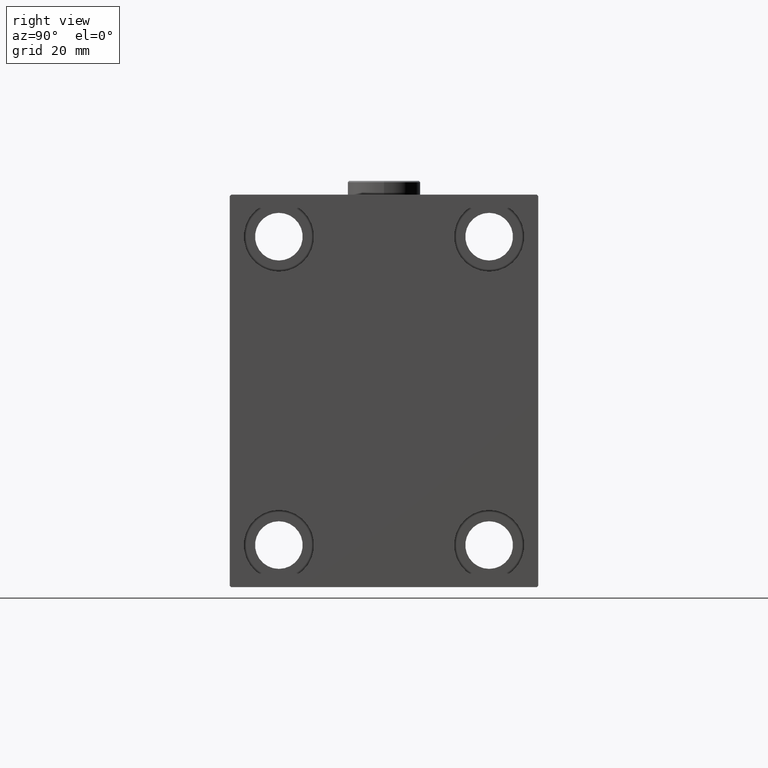
[diagram: clean part render]
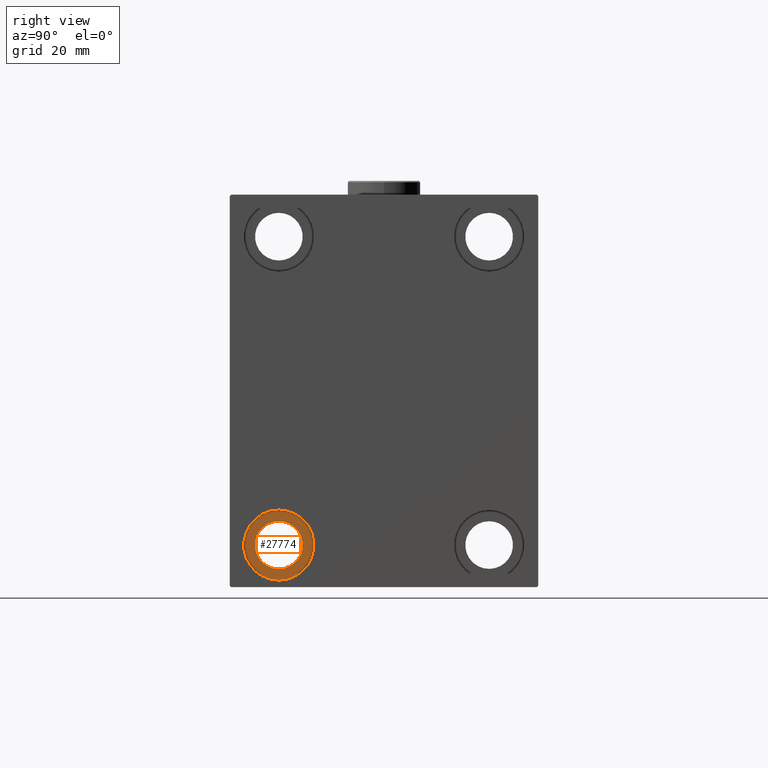
[diagram: same view with one face highlighted and labeled with its STEP entity id]
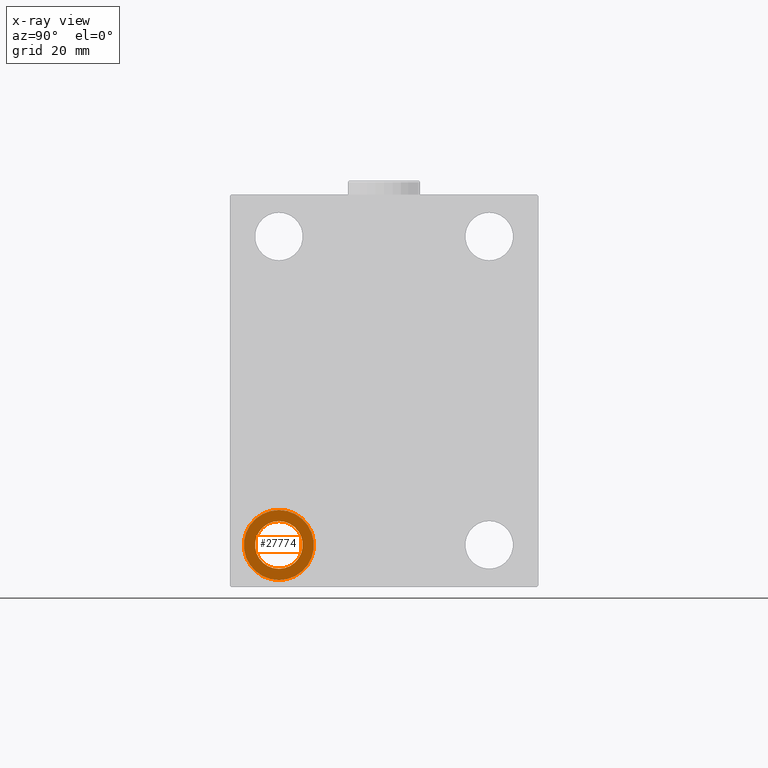
[diagram: x-ray of the same camera — body ghosted, the highlighted face saturated]
A machine part, right view. The second image highlights one B-rep face of the part: STEP entity #27774.
The next image is the same camera in x-ray: the body ghosted, the highlighted face saturated — about 0% of this face is hidden behind the body in this view.
In plain terms, the highlighted planar face has unit normal (1, 0, 0).
Its self-contained STEP definition (entity closure, byte-faithful):
#471 = EDGE_CURVE ( 'NONE', #42602, #11844, #45131, .T. ) ;
#1249 = DIRECTION ( 'NONE',  ( -1.000000000000000000, -0.000000000000000000, -0.000000000000000000 ) ) ;
#1486 = EDGE_CURVE ( 'NONE', #42203, #21560, #26860, .T. ) ;
#1609 = FACE_BOUND ( 'NONE', #31576, .T. ) ;
#3685 = CIRCLE ( 'NONE', #16116, 12.49999999999999645 ) ;
#5042 = PLANE ( 'NONE',  #44982 ) ;
#5498 = CARTESIAN_POINT ( 'NONE',  ( 155.9999999999999716, 0.000000000000000000, 0.000000000000000000 ) ) ;
#7796 = AXIS2_PLACEMENT_3D ( 'NONE', #17287, #42239, #20944 ) ;
#9850 = DIRECTION ( 'NONE',  ( -1.000000000000000000, -0.000000000000000000, -0.000000000000000000 ) ) ;
#11410 = EDGE_CURVE ( 'NONE', #11844, #42602, #3685, .T. ) ;
#11844 = VERTEX_POINT ( 'NONE', #33729 ) ;
#13524 = CIRCLE ( 'NONE', #29663, 8.499999999999992895 ) ;
#14984 = ORIENTED_EDGE ( 'NONE', *, *, #1486, .T. ) ;
#15818 = DIRECTION ( 'NONE',  ( 0.000000000000000000, 0.000000000000000000, 1.000000000000000000 ) ) ;
#16116 = AXIS2_PLACEMENT_3D ( 'NONE', #36086, #1249, #22557 ) ;
#16792 = CARTESIAN_POINT ( 'NONE',  ( 155.9999999999999716, -37.50000000000002132, -54.99999999999999289 ) ) ;
#17287 = CARTESIAN_POINT ( 'NONE',  ( 155.9999999999999716, -37.50000000000002132, -54.99999999999999289 ) ) ;
#19735 = DIRECTION ( 'NONE',  ( 0.000000000000000000, 0.000000000000000000, -1.000000000000000000 ) ) ;
#20420 = ORIENTED_EDGE ( 'NONE', *, *, #471, .F. ) ;
#20944 = DIRECTION ( 'NONE',  ( 0.000000000000000000, 0.000000000000000000, 1.000000000000000000 ) ) ;
#21198 = ORIENTED_EDGE ( 'NONE', *, *, #11410, .F. ) ;
#21329 = CARTESIAN_POINT ( 'NONE',  ( 155.9999999999999716, -37.50000000000002132, -46.50000000000000000 ) ) ;
#21523 = ORIENTED_EDGE ( 'NONE', *, *, #37256, .T. ) ;
#21560 = VERTEX_POINT ( 'NONE', #27166 ) ;
#22557 = DIRECTION ( 'NONE',  ( 0.000000000000000000, 0.000000000000000000, 1.000000000000000000 ) ) ;
#22914 = FACE_OUTER_BOUND ( 'NONE', #36589, .T. ) ;
#26475 = CARTESIAN_POINT ( 'NONE',  ( 155.9999999999999716, -37.50000000000002132, -67.49999999999998579 ) ) ;
#26860 = CIRCLE ( 'NONE', #31947, 8.499999999999992895 ) ;
#27166 = CARTESIAN_POINT ( 'NONE',  ( 155.9999999999999716, -37.50000000000002132, -63.49999999999998579 ) ) ;
#27774 = ADVANCED_FACE ( 'NONE', ( #22914, #1609 ), #5042, .T. ) ;
#27781 = DIRECTION ( 'NONE',  ( 0.000000000000000000, 0.000000000000000000, -1.000000000000000000 ) ) ;
#28905 = DIRECTION ( 'NONE',  ( 1.000000000000000000, 0.000000000000000000, -0.000000000000000000 ) ) ;
#29663 = AXIS2_PLACEMENT_3D ( 'NONE', #37594, #9850, #19735 ) ;
#31576 = EDGE_LOOP ( 'NONE', ( #14984, #21523 ) ) ;
#31947 = AXIS2_PLACEMENT_3D ( 'NONE', #16792, #44963, #27781 ) ;
#33729 = CARTESIAN_POINT ( 'NONE',  ( 155.9999999999999716, -37.50000000000002132, -42.49999999999999289 ) ) ;
#36086 = CARTESIAN_POINT ( 'NONE',  ( 155.9999999999999716, -37.50000000000002132, -54.99999999999999289 ) ) ;
#36589 = EDGE_LOOP ( 'NONE', ( #20420, #21198 ) ) ;
#37256 = EDGE_CURVE ( 'NONE', #21560, #42203, #13524, .T. ) ;
#37594 = CARTESIAN_POINT ( 'NONE',  ( 155.9999999999999716, -37.50000000000002132, -54.99999999999999289 ) ) ;
#42203 = VERTEX_POINT ( 'NONE', #21329 ) ;
#42239 = DIRECTION ( 'NONE',  ( -1.000000000000000000, -0.000000000000000000, -0.000000000000000000 ) ) ;
#42602 = VERTEX_POINT ( 'NONE', #26475 ) ;
#44963 = DIRECTION ( 'NONE',  ( -1.000000000000000000, -0.000000000000000000, -0.000000000000000000 ) ) ;
#44982 = AXIS2_PLACEMENT_3D ( 'NONE', #5498, #28905, #15818 ) ;
#45131 = CIRCLE ( 'NONE', #7796, 12.49999999999999645 ) ;